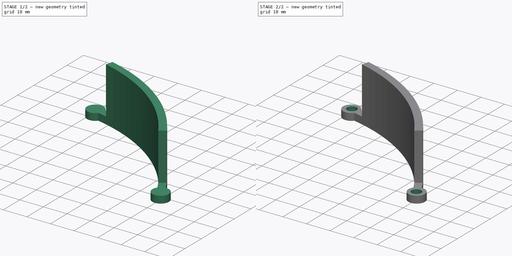
[diagram: build sequence overview — one tinted view per stage of 2, left to right]
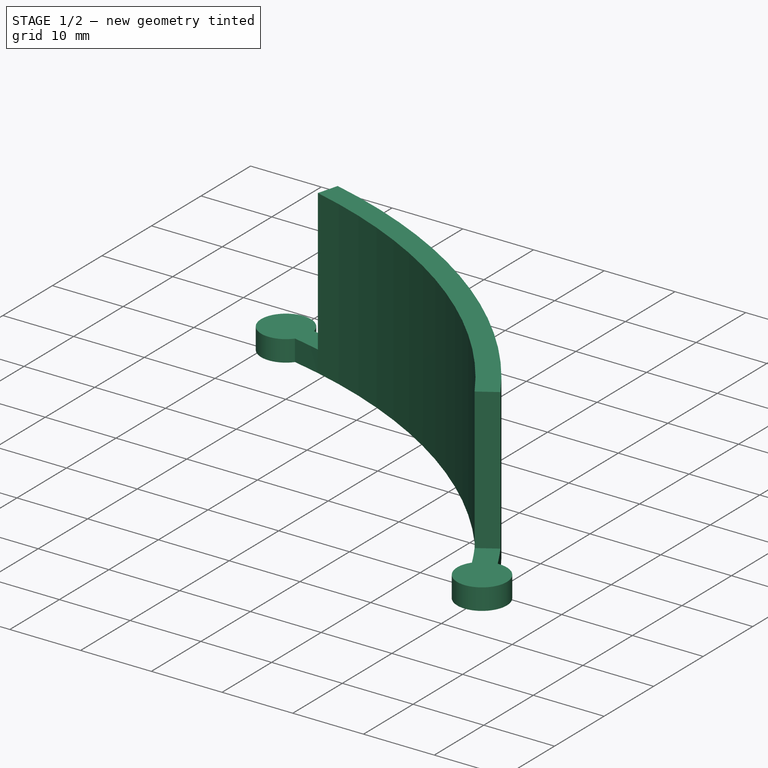
[diagram: stage 1 of 2 — iso view after this stage's code; geometry added in this stage tinted green]
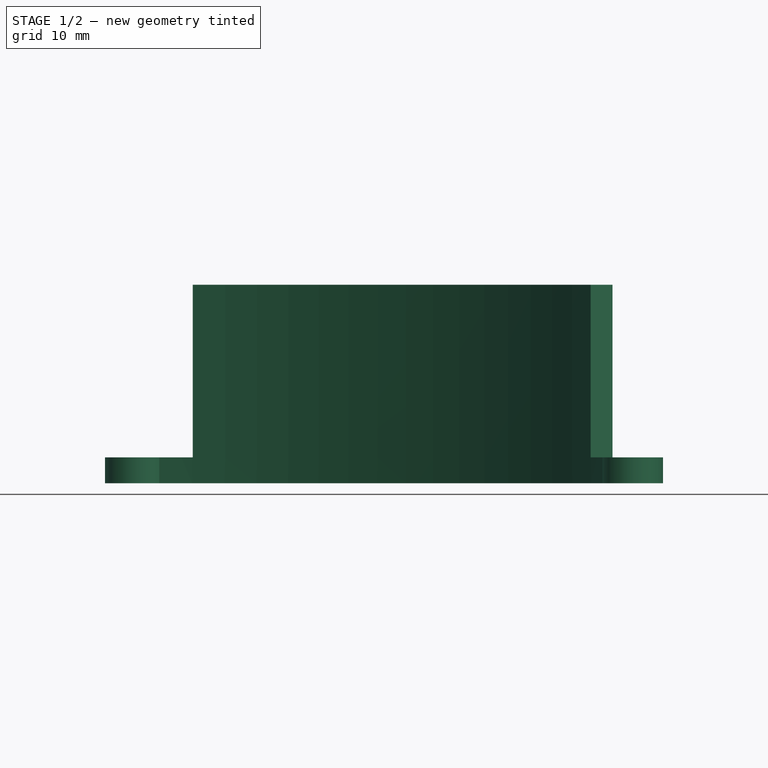
[diagram: stage 1 of 2 — front view after this stage's code; geometry added in this stage tinted green]
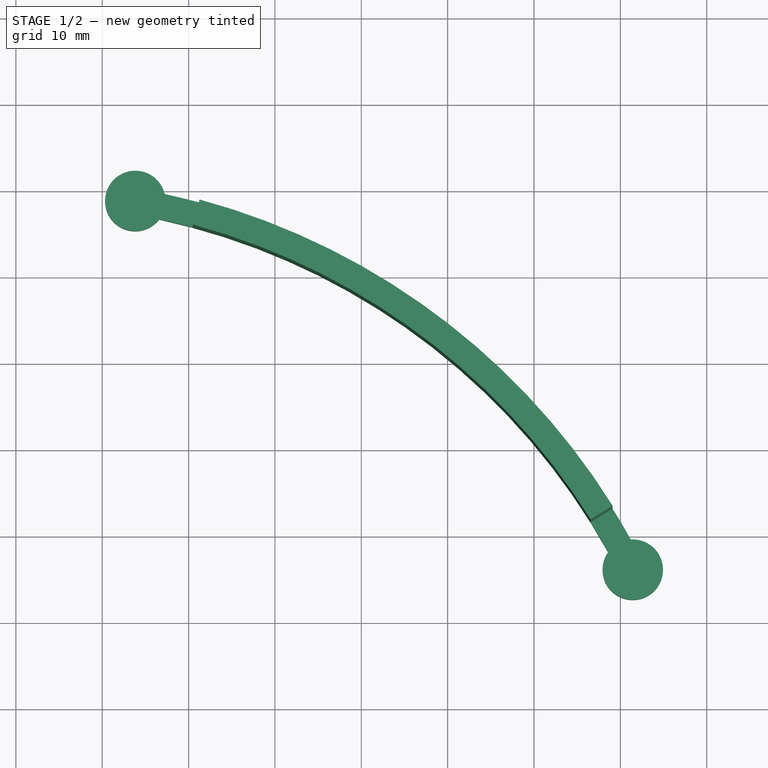
[diagram: stage 1 of 2 — top view after this stage's code; geometry added in this stage tinted green]
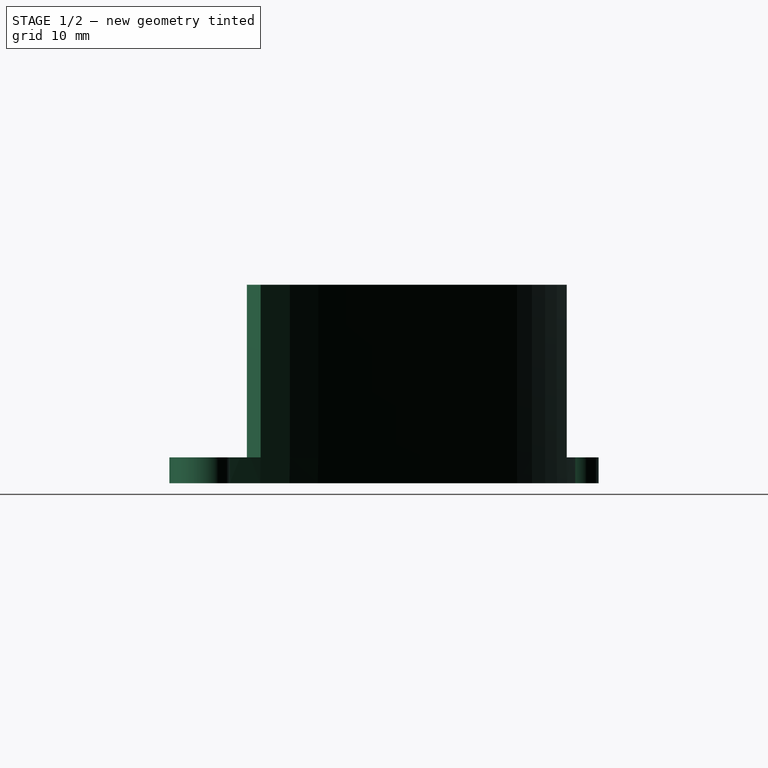
[diagram: stage 1 of 2 — right view after this stage's code; geometry added in this stage tinted green]
FCSTD DOCUMENT  (FreeCAD 0.21R33668 +7 (Git))
Label: Protection_carte
License: All rights reserved
LicenseURL: http://en.wikipedia.org/wiki/All_rights_reserved
objects: Sketcher::SketchObject×3, PartDesign::Pad×2, PartDesign::Pocket×1, PartDesign::Body×1
note: 10 computed .brp shape members not serialized (recipe doc carries the construction recipe); baked Part::Feature solids carry a one-line shape summary decoded from their .brp

FEATURE [Sketcher::SketchObject] Sketch277
  FullyConstrained = false
  MapMode = 5
  Support = -> [XY_Plane364]
  sketch-geometry (10):
    g0: ArcOfCircle CenterX=0 CenterY=0 CenterZ=0 NormalX=0 NormalY=0 NormalZ=1 AngleXU=0 Radius=81.5 StartAngle=0.508072 EndAngle=1.35777
    g1: ArcOfCircle CenterX=0 CenterY=0 CenterZ=0 NormalX=0 NormalY=0 NormalZ=1 AngleXU=0 Radius=78.5 StartAngle=0.508072 EndAngle=1.35777
    g2: ArcOfCircle CenterX=13.8231 CenterY=78.8601 CenterZ=0 NormalX=0 NormalY=0 NormalZ=1 AngleXU=0 Radius=3.5 StartAngle=0.22988 EndAngle=5.62724
    g3: ArcOfCircle CenterX=71.4331 CenterY=36.1567 CenterZ=0 NormalX=0 NormalY=0 NormalZ=1 AngleXU=0 Radius=3.5 StartAngle=2.52178 EndAngle=7.91914
    g4: LineSegment StartX=13.8231 StartY=78.8601 StartZ=0 EndX=17.231 EndY=79.6577 EndZ=0
    g5: LineSegment StartX=13.8231 StartY=78.8601 StartZ=0 EndX=16.5967 EndY=76.7255 EndZ=0
    g6: LineSegment StartX=68.5842 StartY=38.1898 StartZ=0 EndX=71.4331 EndY=36.1567 EndZ=0
    g7: LineSegment StartX=71.4331 StartY=36.1567 StartZ=0 EndX=71.2052 EndY=39.6493 EndZ=0
    g8: LineSegment StartX=16.5967 StartY=76.7255 StartZ=0 EndX=17.231 EndY=79.6577 EndZ=0
    g9: LineSegment StartX=68.5842 StartY=38.1898 StartZ=0 EndX=71.2052 EndY=39.6493 EndZ=0
  constraints (24):
    c: Coincident(g0,g-1)
    c: Coincident(g1,g0)
    c: Coincident(g2,g0)
    c: Coincident(g2,g1)
    c: Coincident(g3,g0)
    c: Coincident(g3,g1)
    c: Diameter(g3) = 7
    c: Diameter(g2) = 7
    c: Coincident(g4,g2)
    c: Coincident(g4,g0)
    c: Coincident(g5,g2)
    c: Coincident(g5,g1)
    c: Coincident(g6,g1)
    c: Coincident(g6,g3)
    c: Coincident(g7,g3)
    c: Coincident(g7,g0)
    c: Diameter(g1) = 157
    c: Coincident(g8,g1)
    c: Coincident(g8,g0)
    c: Coincident(g9,g1)
    c: Coincident(g9,g0)
    c: Perpendicular(g0,g9)
    c: Perpendicular(g0,g8)
    c: Distance(g8) = 3
FEATURE [PartDesign::Pad] Pad113
  Direction = (0,0,1)
  Length = 3
  Length2 = 10
  Profile = -> Sketch277
  ReferenceAxis = -> Sketch277 [N_Axis]
  Type = 0
FEATURE [Sketcher::SketchObject] Sketch278
  ExternalGeometry = -> [Pad113]
  FullyConstrained = true
  MapMode = 5
  Placement = pos=(0,0,3) rot=(0,0,1;0rad)
  Support = -> [Pad113]
  sketch-geometry (4):
    g0: ArcOfCircle CenterX=0 CenterY=0 CenterZ=0 NormalX=0 NormalY=0 NormalZ=1 AngleXU=0 Radius=78.5 StartAngle=0.559033 EndAngle=1.3068
    g1: ArcOfCircle CenterX=0 CenterY=0 CenterZ=0 NormalX=0 NormalY=0 NormalZ=1 AngleXU=0 Radius=81.5 StartAngle=0.559033 EndAngle=1.3068
    g2: LineSegment StartX=20.4835 StartY=75.7805 StartZ=0 EndX=21.2663 EndY=78.6765 EndZ=0
    g3: LineSegment StartX=66.5498 StartY=41.6338 StartZ=0 EndX=69.0931 EndY=43.2249 EndZ=0
  constraints (12):
    c: Coincident(g0,g-4)
    c: PointOnObject(g0,g-3)
    c: Coincident(g1,g0)
    c: PointOnObject(g1,g-4)
    c: Coincident(g2,g0)
    c: Coincident(g2,g1)
    c: Coincident(g3,g0)
    c: Coincident(g3,g1)
    c: Perpendicular(g1,g3)
    c: Perpendicular(g1,g2)
    c: Distance(g-3,g0) = 4
    c: Distance(g-3,g0) = 4
FEATURE [PartDesign::Pad] Pad114
  BaseFeature = -> Pad113
  Direction = (0,0,1)
  Length = 20
  Length2 = 10
  Profile = -> Sketch278
  ReferenceAxis = -> Sketch278 [N_Axis]
  Type = 0
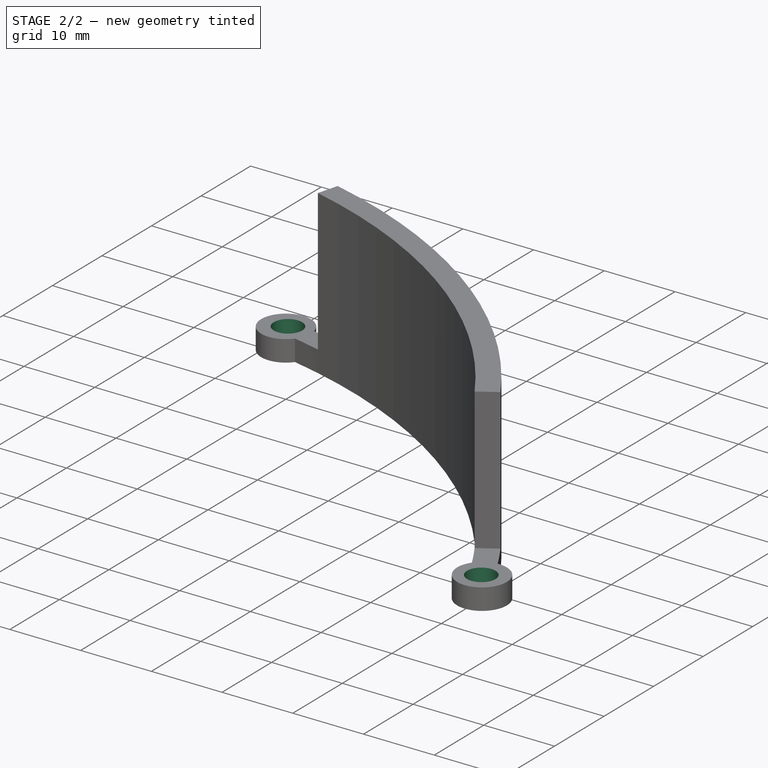
[diagram: stage 2 of 2 — iso view after this stage's code; geometry added in this stage tinted green]
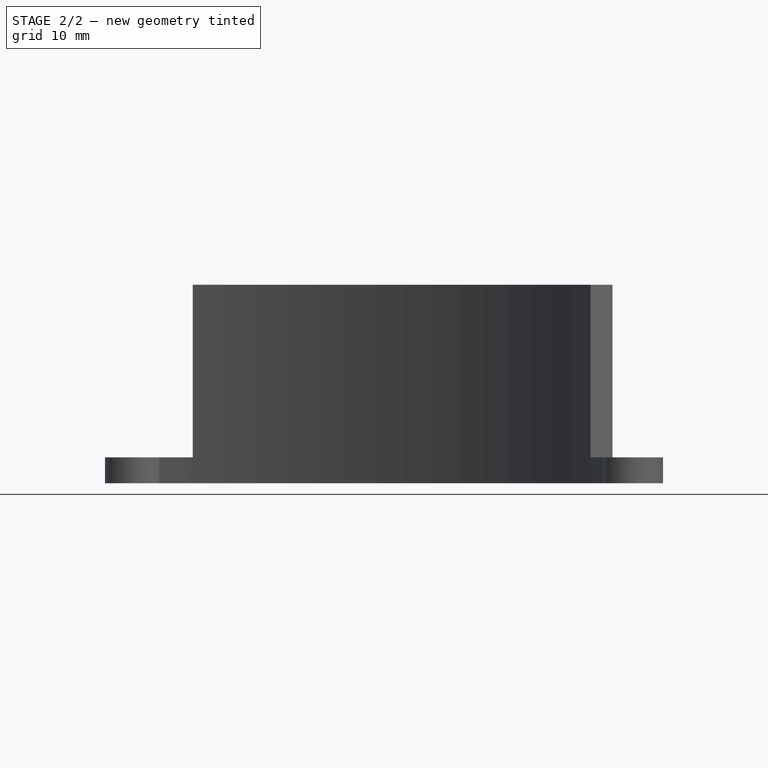
[diagram: stage 2 of 2 — front view after this stage's code; geometry added in this stage tinted green]
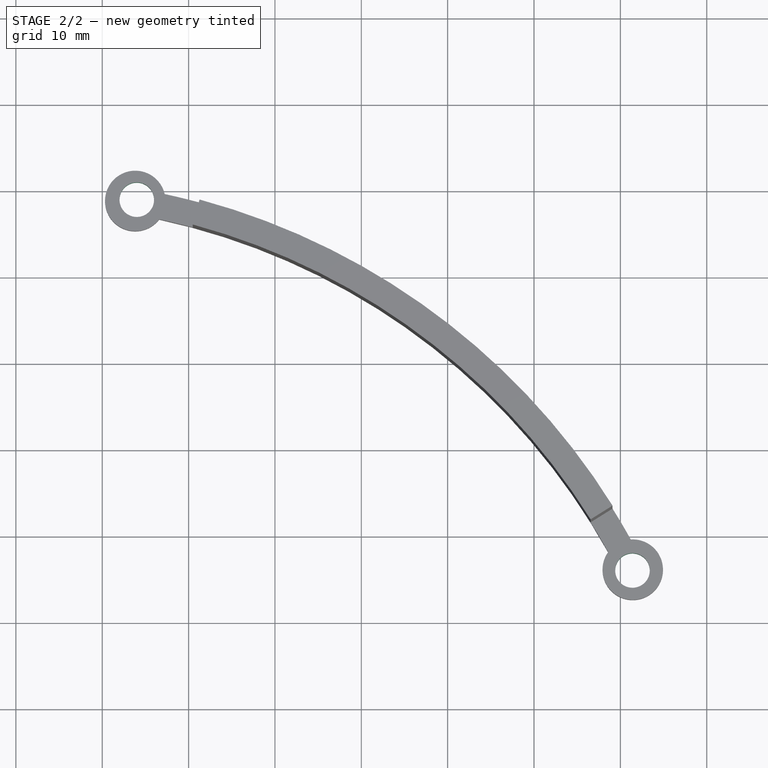
[diagram: stage 2 of 2 — top view after this stage's code; geometry added in this stage tinted green]
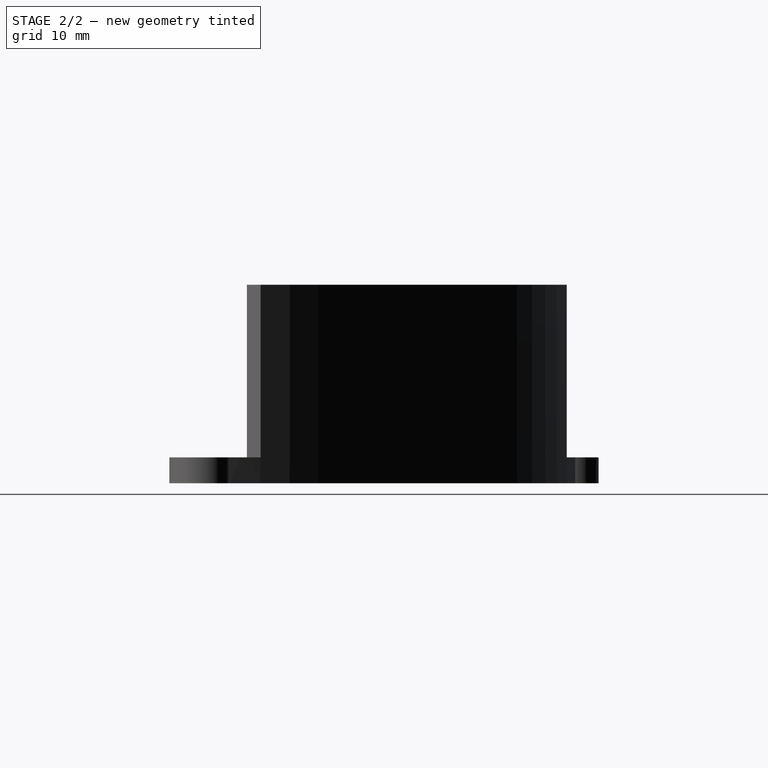
[diagram: stage 2 of 2 — right view after this stage's code; geometry added in this stage tinted green]
FEATURE [Sketcher::SketchObject] Sketch279
  FullyConstrained = false
  MapMode = 5
  Placement = pos=(0,0,3) rot=(0,0,1;0rad)
  Support = -> [Pad114]
  sketch-geometry (2):
    g0: Circle CenterX=71.4021 CenterY=36.0605 CenterZ=0 NormalX=0 NormalY=0 NormalZ=1 AngleXU=0 Radius=2
    g1: Circle CenterX=14.0026 CenterY=79.0046 CenterZ=0 NormalX=0 NormalY=0 NormalZ=1 AngleXU=0 Radius=2
  constraints (2):
    c: Diameter(g0) = 4
    c: Diameter(g1) = 4
FEATURE [PartDesign::Pocket] Pocket134
  BaseFeature = -> Pad114
  Direction = (0,0,-1)
  Length = 5
  Length2 = 5
  Profile = -> Sketch279
  ReferenceAxis = -> Sketch279 [N_Axis]
  Type = 1
FEATURE [PartDesign::Body] Body099  label="Outer shielding 4"
  Group = -> [Sketch277,Pad113,Sketch278,Pad114,Sketch279,Pocket134]
  Origin = -> Origin364
  Placement = pos=(0,0,10) rot=(0,0,1;0rad)
  Tip = -> Pocket134
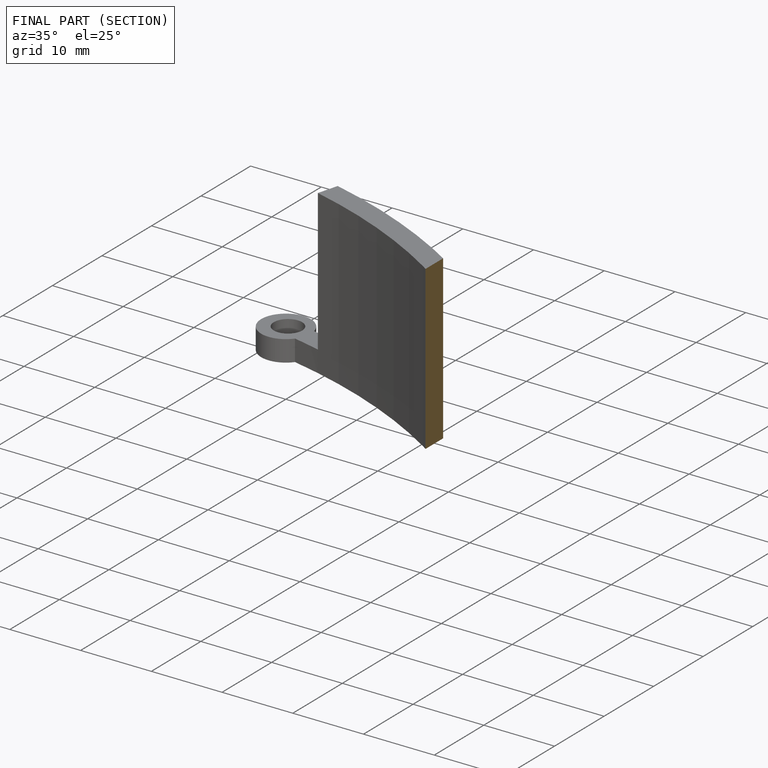
[diagram: finished part — half-section view (interior)]
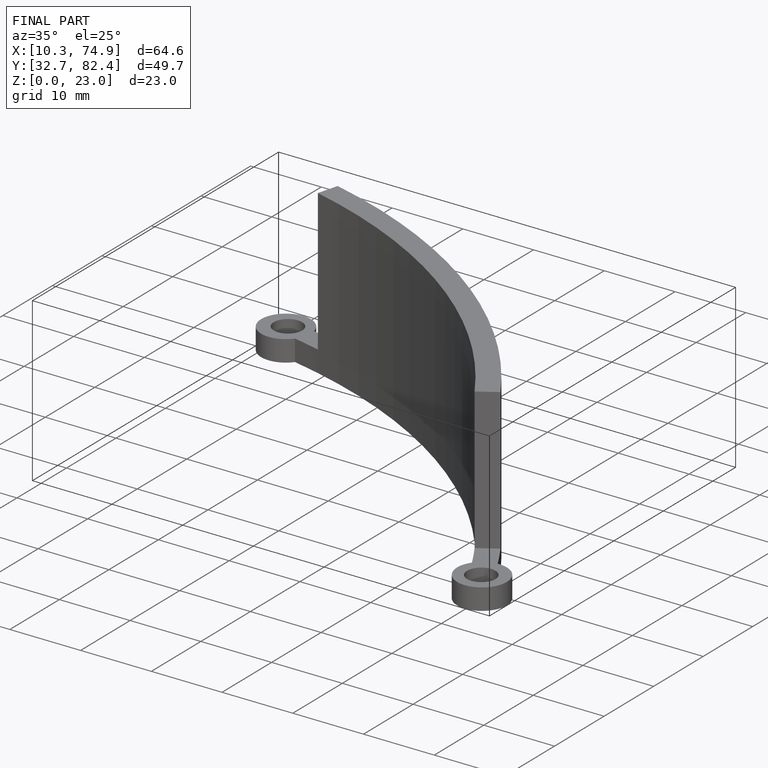
[diagram: finished part — iso view with bounding-box wireframe]
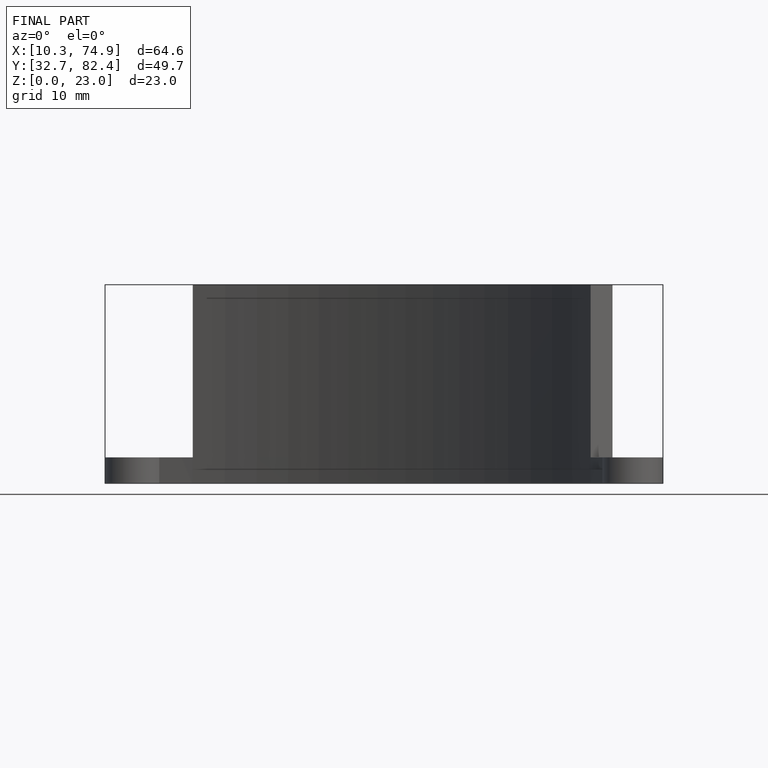
[diagram: finished part — front view with bounding-box wireframe]
